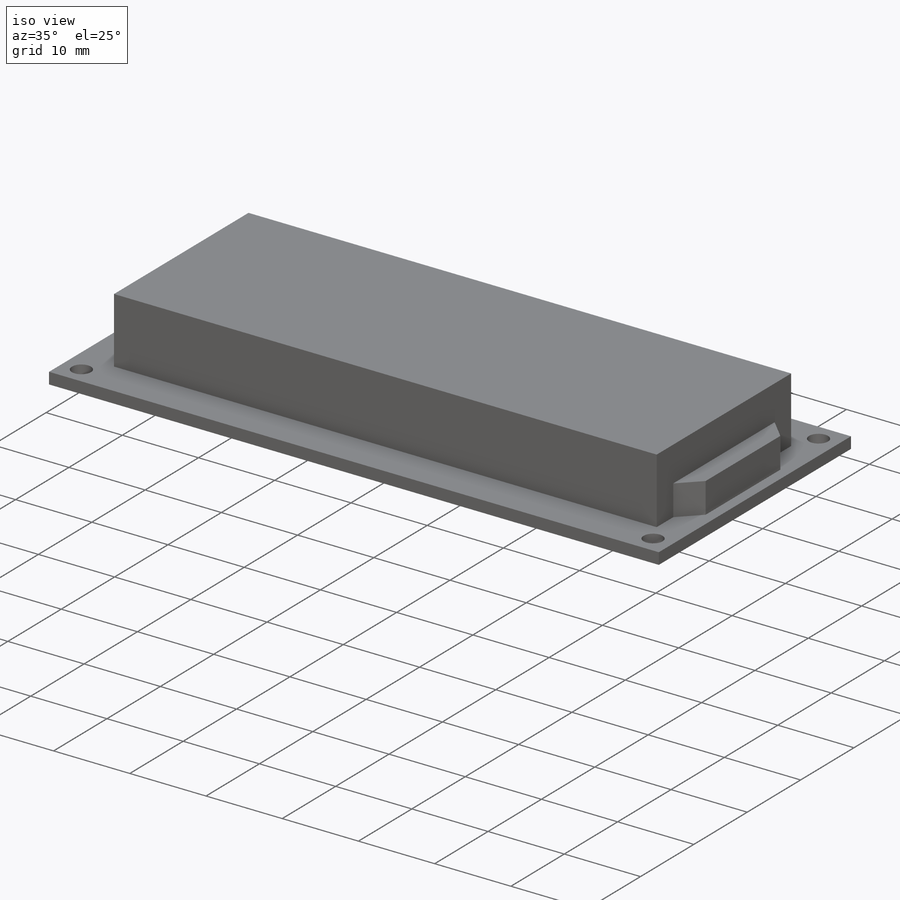
[diagram: iso view]
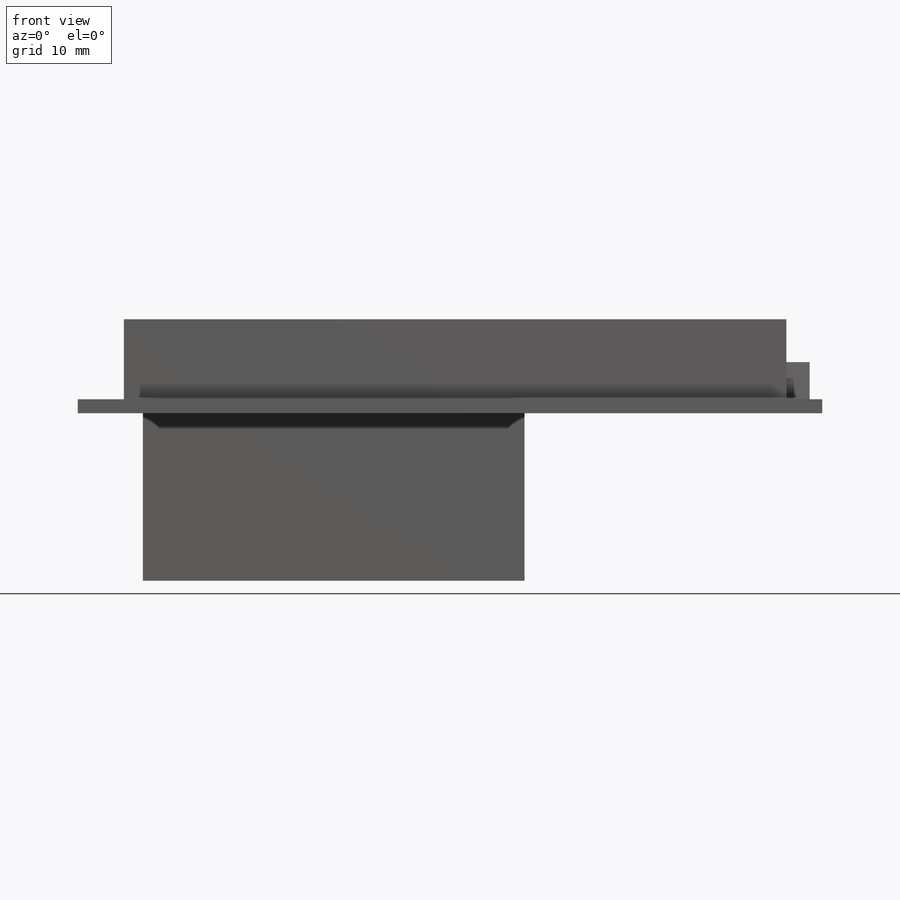
[diagram: front view]
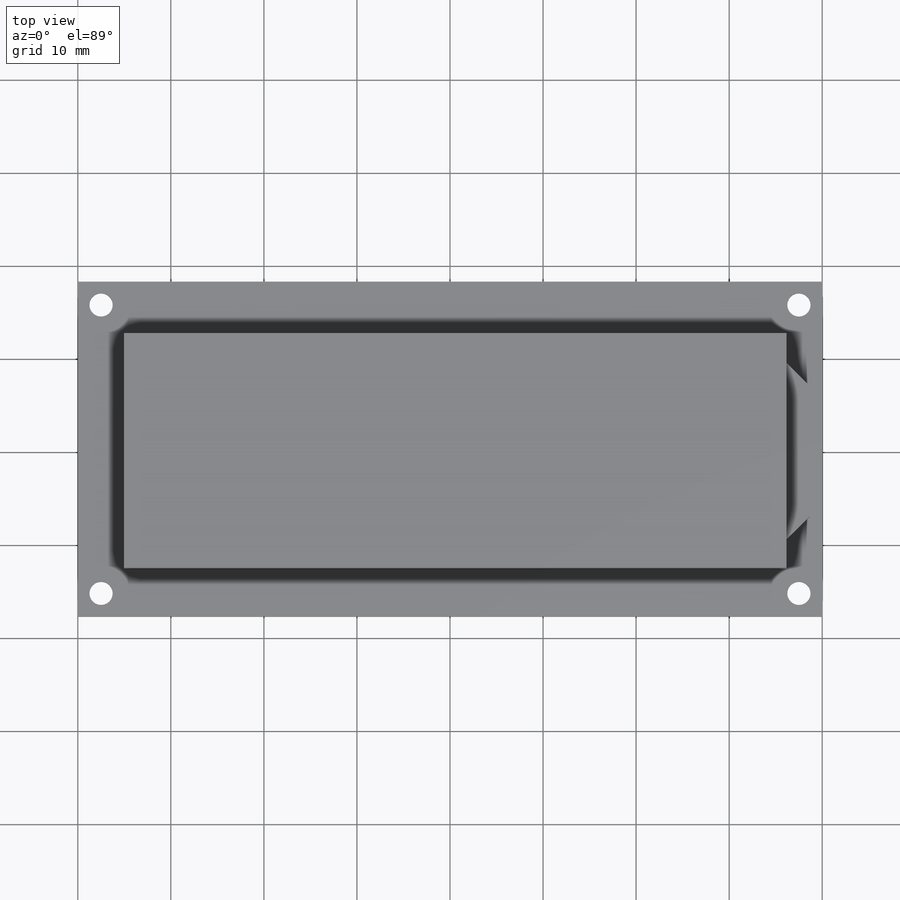
[diagram: top view]
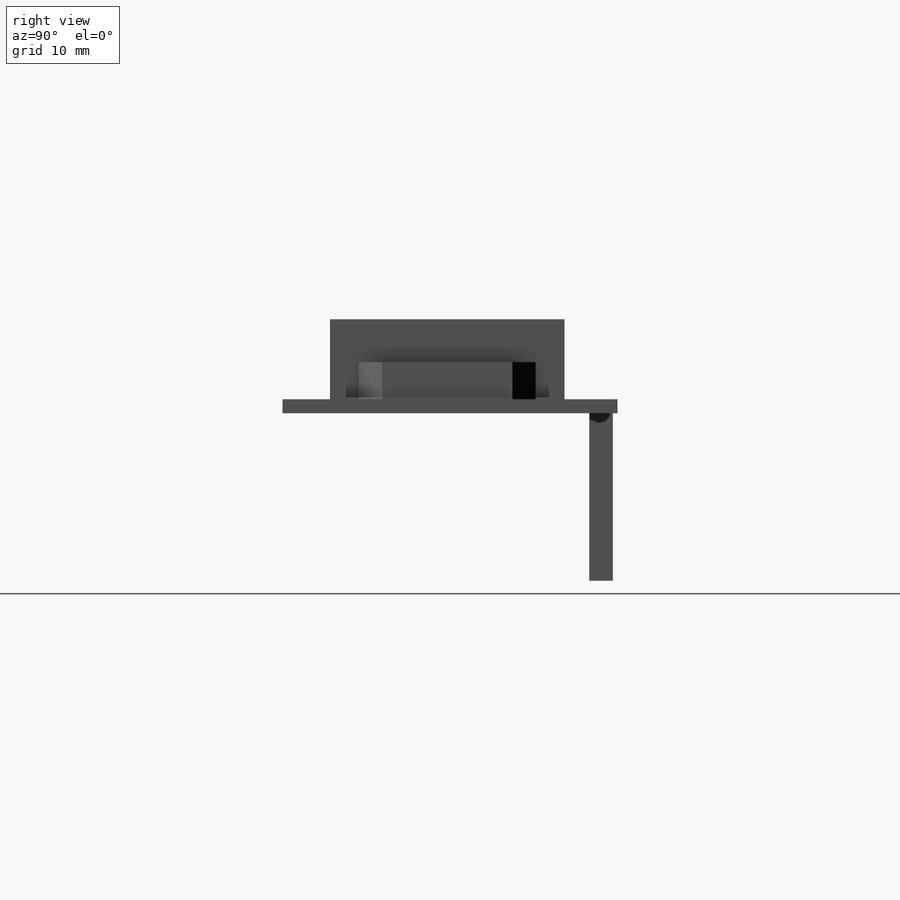
[diagram: right view]
SOLIDWORKS PART (.sldprt)
format: sldprt  version: not decoded by parser v0  size: 370,688 bytes
history: native  units: mm
features: sketch x5, extrude x4, plane x3, material x1, cut_extrude x1 (+8 scaffold rows collapsed)
feature tree (22):
  scaffold x8  (default folders/planes/origin — collapsed)
  material  "Materiale <non specificato>"
  plane  "Piano frontale"
  plane  "Piano superiore"
  plane  "Piano destro"
  sketch  "Schizzo1"  dims[D3=2.5mm D1=36.0mm D2=80.0mm D4=2.5mm D5=~2.509484mm]
  extrude  "Estrusione-Estrusione1"  Depth=1.5mm
  sketch  "Schizzo2"  dims[D1=2.5mm D4=2.5mm D6=2.5mm D7=2.5mm D2=2.5mm D3=2.5mm D5=2.5mm D8=2.5mm D9=2.5mm]
  cut_extrude  "Taglio-Estrusione1"  Depth=1.5mm
  sketch  "Schizzo3"  dims[D1=25.2mm D2=71.2mm D3=4.95mm D4=5.7mm D5=2.5mm D6=7.0mm D7=7.0mm D8=9.5mm D9=9.5mm]
  extrude  "Estrusione-Estrusione2"  Depth=8.6mm
  extrude  "Estrusione-Estrusione3"  [1 undecoded]
  sketch  "Schizzo3<3>"  dims[D1=4.0mm]
  sketch  "Schizzo4"  dims[D1=2.54mm D2=0.5mm D3=41.0mm D4=7.0mm]
  extrude  "Estrusione-Estrusione4"  Depth=18mm
decode coverage: 9 of 10 modeling features carry decoded parameters
note: ~ marks probable driven/reference dimensions
note: 1 parameter value undecoded
note: suppression state not decoded; provenance and decode notes live in map.json
